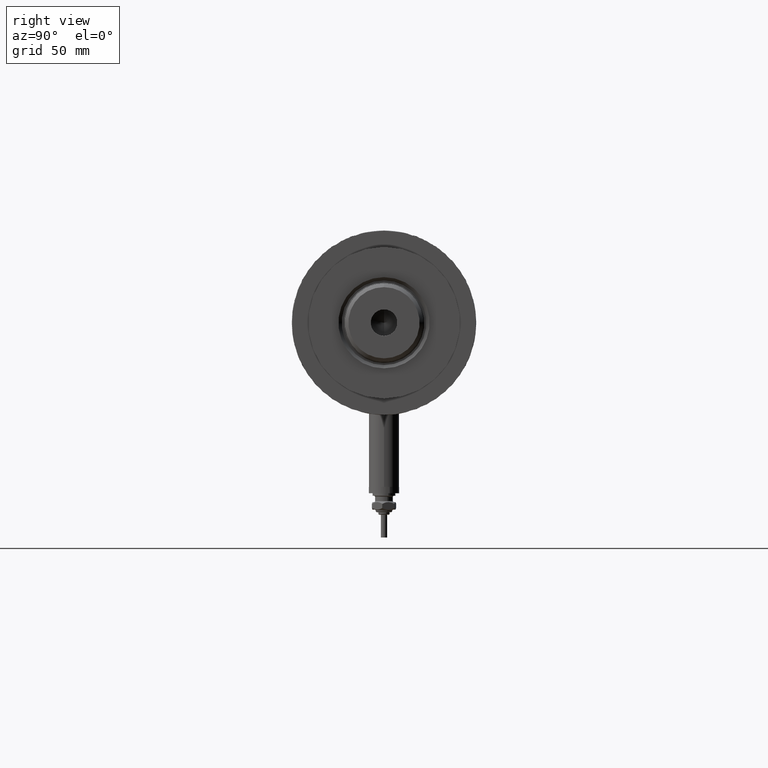
[diagram: clean part render]
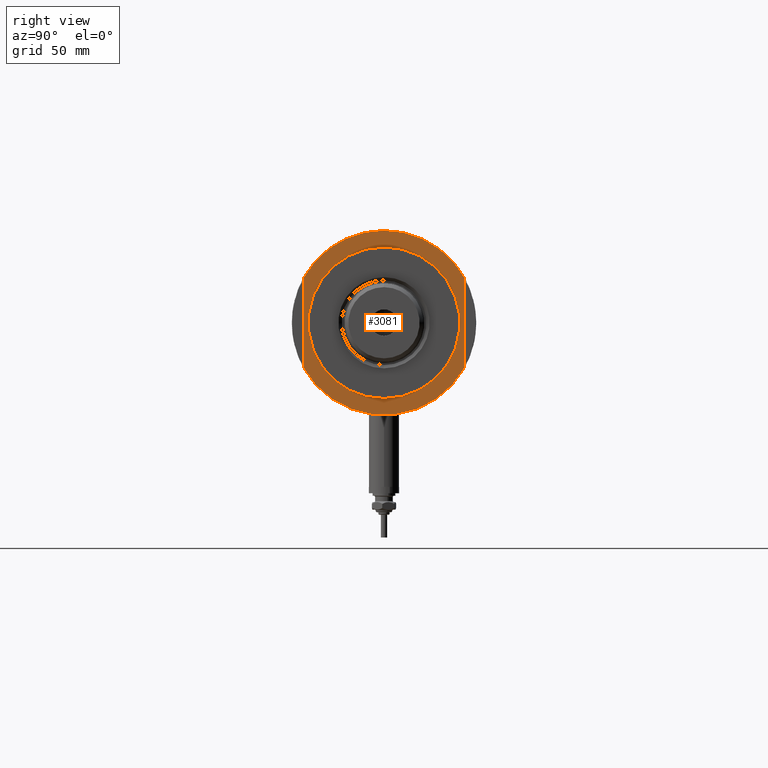
[diagram: same view with one face highlighted and labeled with its STEP entity id]
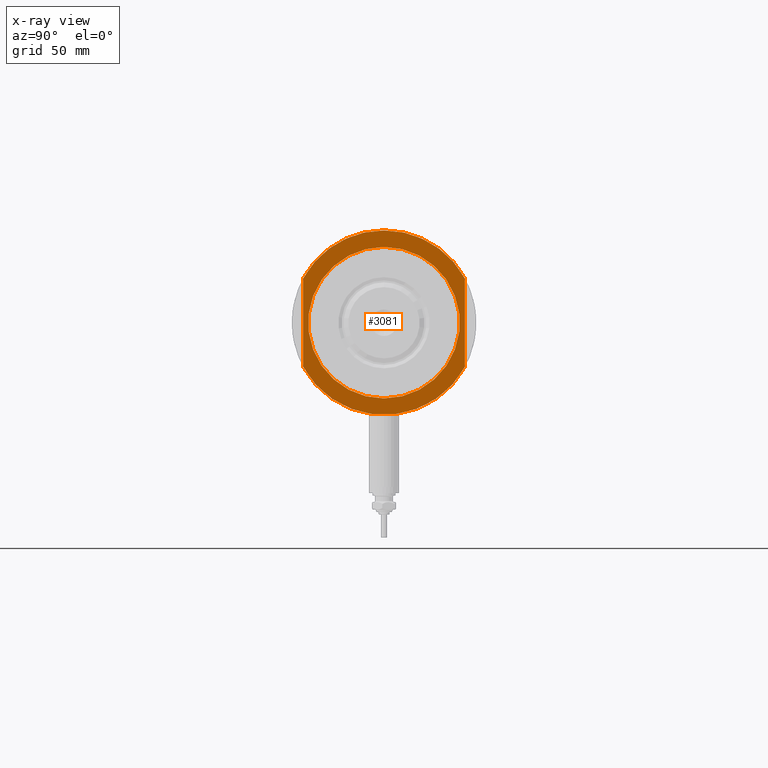
[diagram: x-ray of the same camera — body ghosted, the highlighted face saturated]
A machine part, right view. The second image highlights one B-rep face of the part: STEP entity #3081.
The next image is the same camera in x-ray: the body ghosted, the highlighted face saturated — about 0% of this face is hidden behind the body in this view.
In plain terms, the highlighted planar face has unit normal (1, 0, -0).
Its self-contained STEP definition (entity closure, byte-faithful):
#24 = AXIS2_PLACEMENT_3D ( 'NONE', #3574, #1301, #1774 ) ;
#81 = DIRECTION ( 'NONE',  ( 1.000000000000000000, 0.000000000000000000, 0.000000000000000000 ) ) ;
#176 = CARTESIAN_POINT ( 'NONE',  ( 0.000000000000000000, 0.000000000000000000, 25.19999999999999929 ) ) ;
#304 = FACE_BOUND ( 'NONE', #1610, .T. ) ;
#501 = ORIENTED_EDGE ( 'NONE', *, *, #966, .F. ) ;
#515 = VERTEX_POINT ( 'NONE', #1671 ) ;
#680 = DIRECTION ( 'NONE',  ( -1.000000000000000000, -0.000000000000000000, -0.000000000000000000 ) ) ;
#784 = AXIS2_PLACEMENT_3D ( 'NONE', #4054, #5912, #3612 ) ;
#851 = VERTEX_POINT ( 'NONE', #3336 ) ;
#869 = EDGE_CURVE ( 'NONE', #4543, #1654, #4899, .T. ) ;
#935 = ORIENTED_EDGE ( 'NONE', *, *, #869, .T. ) ;
#966 = EDGE_CURVE ( 'NONE', #515, #1654, #4824, .T. ) ;
#1015 = DIRECTION ( 'NONE',  ( -0.000000000000000000, -0.000000000000000000, -1.000000000000000000 ) ) ;
#1016 = DIRECTION ( 'NONE',  ( 1.000000000000000000, 0.000000000000000000, 0.000000000000000000 ) ) ;
#1037 = VERTEX_POINT ( 'NONE', #3397 ) ;
#1045 = ORIENTED_EDGE ( 'NONE', *, *, #1798, .F. ) ;
#1301 = DIRECTION ( 'NONE',  ( 0.000000000000000000, 0.000000000000000000, 1.000000000000000000 ) ) ;
#1463 = CIRCLE ( 'NONE', #3864, 36.50000000000000000 ) ;
#1586 = ORIENTED_EDGE ( 'NONE', *, *, #5766, .T. ) ;
#1610 = EDGE_LOOP ( 'NONE', ( #5701, #1586 ) ) ;
#1654 = VERTEX_POINT ( 'NONE', #4075 ) ;
#1669 = CARTESIAN_POINT ( 'NONE',  ( -36.50000000000000000, 0.000000000000000000, 25.19999999999999929 ) ) ;
#1671 = CARTESIAN_POINT ( 'NONE',  ( 17.55704986607943496, -32.00000000000000000, 25.19999999999999929 ) ) ;
#1755 = AXIS2_PLACEMENT_3D ( 'NONE', #1955, #1015, #5083 ) ;
#1774 = DIRECTION ( 'NONE',  ( 1.000000000000000000, 0.000000000000000000, -0.000000000000000000 ) ) ;
#1798 = EDGE_CURVE ( 'NONE', #1037, #2763, #3444, .T. ) ;
#1955 = CARTESIAN_POINT ( 'NONE',  ( 0.000000000000000000, 0.000000000000000000, 25.19999999999999929 ) ) ;
#2231 = CIRCLE ( 'NONE', #5614, 30.00000000000000355 ) ;
#2291 = AXIS2_PLACEMENT_3D ( 'NONE', #4728, #5123, #1016 ) ;
#2530 = CARTESIAN_POINT ( 'NONE',  ( -17.55704986607943141, -32.00000000000000000, 25.19999999999999929 ) ) ;
#2613 = FACE_OUTER_BOUND ( 'NONE', #4902, .T. ) ;
#2763 = VERTEX_POINT ( 'NONE', #5601 ) ;
#2805 = CIRCLE ( 'NONE', #1755, 30.00000000000000355 ) ;
#2986 = CIRCLE ( 'NONE', #784, 36.50000000000000000 ) ;
#3011 = EDGE_CURVE ( 'NONE', #515, #2763, #2986, .T. ) ;
#3081 = ADVANCED_FACE ( 'NONE', ( #304, #2613 ), #4875, .T. ) ;
#3213 = CARTESIAN_POINT ( 'NONE',  ( 0.000000000000000000, 0.000000000000000000, 25.19999999999999929 ) ) ;
#3336 = CARTESIAN_POINT ( 'NONE',  ( 30.00000000000000355, 0.000000000000000000, 25.19999999999999929 ) ) ;
#3397 = CARTESIAN_POINT ( 'NONE',  ( -17.55704986607943496, 32.00000000000000000, 25.19999999999999929 ) ) ;
#3444 = LINE ( 'NONE', #5661, #5011 ) ;
#3498 = ORIENTED_EDGE ( 'NONE', *, *, #3011, .T. ) ;
#3574 = CARTESIAN_POINT ( 'NONE',  ( 0.000000000000000000, 0.000000000000000000, 25.19999999999999929 ) ) ;
#3612 = DIRECTION ( 'NONE',  ( 1.000000000000000000, 0.000000000000000000, 0.000000000000000000 ) ) ;
#3826 = DIRECTION ( 'NONE',  ( 0.000000000000000000, 0.000000000000000000, 1.000000000000000000 ) ) ;
#3864 = AXIS2_PLACEMENT_3D ( 'NONE', #176, #3826, #81 ) ;
#3964 = VERTEX_POINT ( 'NONE', #4889 ) ;
#4054 = CARTESIAN_POINT ( 'NONE',  ( 0.000000000000000000, 0.000000000000000000, 25.19999999999999929 ) ) ;
#4075 = CARTESIAN_POINT ( 'NONE',  ( -17.55704986607943496, -32.00000000000000000, 25.19999999999999929 ) ) ;
#4260 = EDGE_CURVE ( 'NONE', #1037, #4543, #1463, .T. ) ;
#4325 = DIRECTION ( 'NONE',  ( 1.000000000000000000, 0.000000000000000000, 0.000000000000000000 ) ) ;
#4543 = VERTEX_POINT ( 'NONE', #1669 ) ;
#4661 = DIRECTION ( 'NONE',  ( 1.000000000000000000, 0.000000000000000000, 0.000000000000000000 ) ) ;
#4728 = CARTESIAN_POINT ( 'NONE',  ( 0.000000000000000000, 0.000000000000000000, 25.19999999999999929 ) ) ;
#4731 = EDGE_CURVE ( 'NONE', #851, #3964, #2805, .T. ) ;
#4824 = LINE ( 'NONE', #2530, #5005 ) ;
#4875 = PLANE ( 'NONE',  #24 ) ;
#4889 = CARTESIAN_POINT ( 'NONE',  ( -30.00000000000000355, 3.673940397442059178E-15, 25.19999999999999929 ) ) ;
#4899 = CIRCLE ( 'NONE', #2291, 36.50000000000000000 ) ;
#4902 = EDGE_LOOP ( 'NONE', ( #501, #3498, #1045, #5059, #935 ) ) ;
#5005 = VECTOR ( 'NONE', #680, 1000.000000000000000 ) ;
#5011 = VECTOR ( 'NONE', #4325, 1000.000000000000000 ) ;
#5057 = DIRECTION ( 'NONE',  ( -0.000000000000000000, -0.000000000000000000, -1.000000000000000000 ) ) ;
#5059 = ORIENTED_EDGE ( 'NONE', *, *, #4260, .T. ) ;
#5083 = DIRECTION ( 'NONE',  ( 1.000000000000000000, 0.000000000000000000, 0.000000000000000000 ) ) ;
#5123 = DIRECTION ( 'NONE',  ( 0.000000000000000000, 0.000000000000000000, 1.000000000000000000 ) ) ;
#5601 = CARTESIAN_POINT ( 'NONE',  ( 17.55704986607943496, 32.00000000000000000, 25.19999999999999929 ) ) ;
#5614 = AXIS2_PLACEMENT_3D ( 'NONE', #3213, #5057, #4661 ) ;
#5661 = CARTESIAN_POINT ( 'NONE',  ( -17.55704986607943141, 32.00000000000000000, 25.19999999999999929 ) ) ;
#5701 = ORIENTED_EDGE ( 'NONE', *, *, #4731, .T. ) ;
#5766 = EDGE_CURVE ( 'NONE', #3964, #851, #2231, .T. ) ;
#5912 = DIRECTION ( 'NONE',  ( 0.000000000000000000, 0.000000000000000000, 1.000000000000000000 ) ) ;